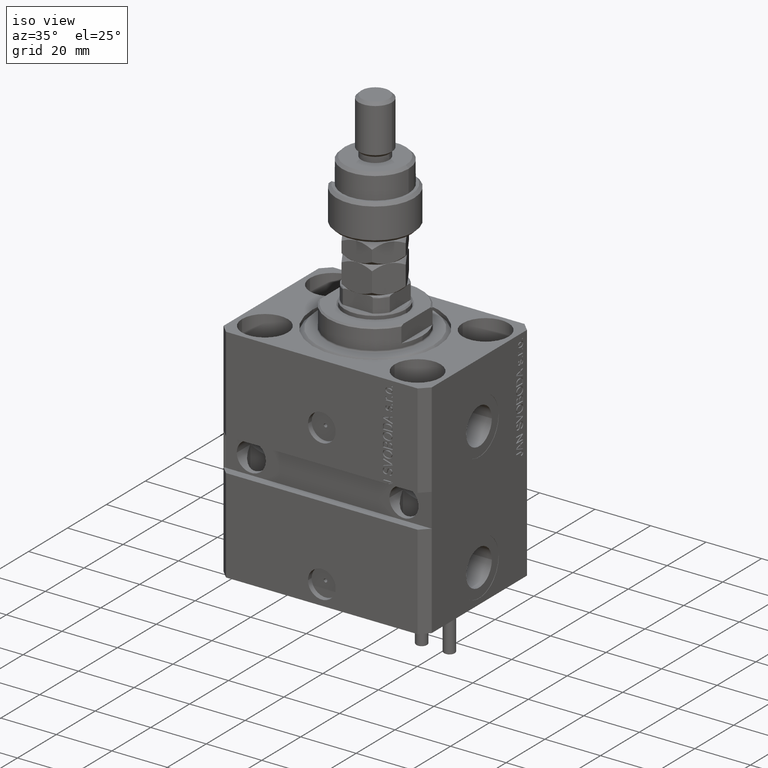
[diagram: clean part render]
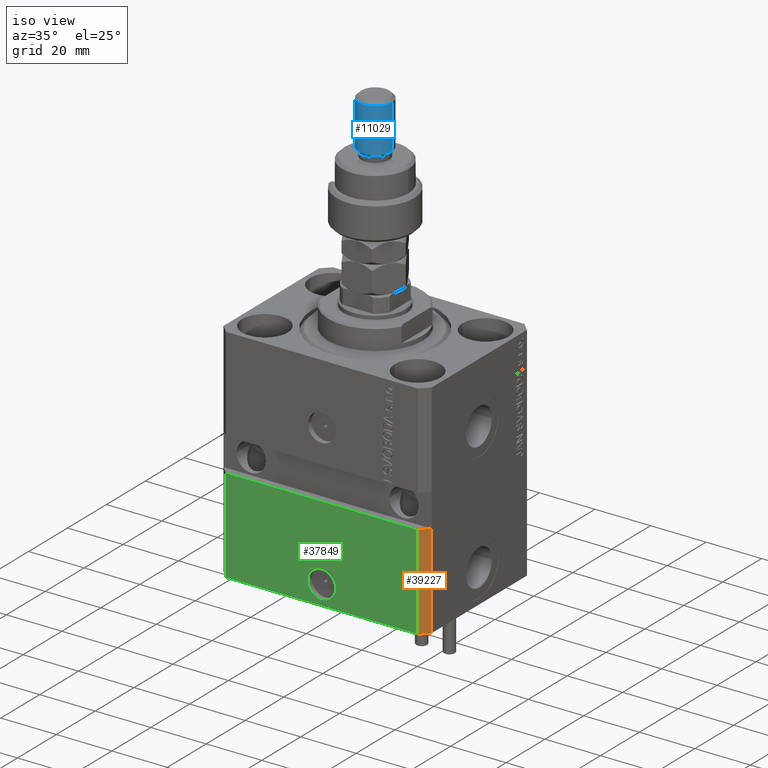
[diagram: same view with three faces highlighted in distinct colors, each labeled with its STEP entity id]
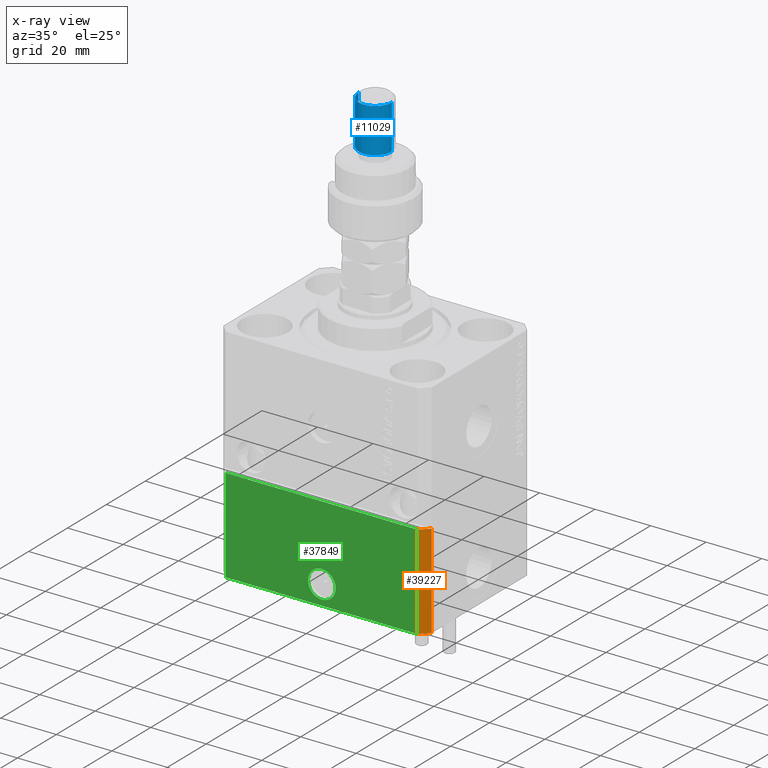
[diagram: x-ray of the same camera — body ghosted, the three highlighted faces saturated]
A machine part, iso view with three faces highlighted in distinct colors.
The next image is the same camera in x-ray (body ghosted, the three faces saturated) — at least one of them is partly hidden behind the body in this view.
Their STEP definitions:

[orange] entity #39227 — the highlighted planar face has unit normal (0.7071, -0.7071, 0).
#1549 = DIRECTION ( 'NONE',  ( 0.7071067811865475727, -0.7071067811865475727, 0.000000000000000000 ) ) ;
#3248 = ORIENTED_EDGE ( 'NONE', *, *, #24216, .F. ) ;
#3342 = VECTOR ( 'NONE', #13754, 1000.000000000000114 ) ;
#8563 = VECTOR ( 'NONE', #41287, 1000.000000000000114 ) ;
#9419 = LINE ( 'NONE', #28589, #3342 ) ;
#9444 = PLANE ( 'NONE',  #37202 ) ;
#10009 = LINE ( 'NONE', #29914, #13994 ) ;
#10636 = VERTEX_POINT ( 'NONE', #32713 ) ;
#11757 = CARTESIAN_POINT ( 'NONE',  ( 37.49999999999999289, -24.50000000000000000, -80.00000000000000000 ) ) ;
#13754 = DIRECTION ( 'NONE',  ( 0.7071067811865474617, 0.7071067811865474617, 0.000000000000000000 ) ) ;
#13994 = VECTOR ( 'NONE', #45218, 1000.000000000000000 ) ;
#14245 = LINE ( 'NONE', #32879, #8563 ) ;
#15959 = VECTOR ( 'NONE', #50403, 1000.000000000000000 ) ;
#16556 = VERTEX_POINT ( 'NONE', #28125 ) ;
#17622 = CARTESIAN_POINT ( 'NONE',  ( 34.49999999999999289, -27.49999999999999645, -80.00000000000000000 ) ) ;
#18250 = LINE ( 'NONE', #42474, #15959 ) ;
#19302 = EDGE_LOOP ( 'NONE', ( #3248, #32471, #42093, #45661 ) ) ;
#20714 = DIRECTION ( 'NONE',  ( 0.7071067811865474617, 0.7071067811865474617, 0.000000000000000000 ) ) ;
#24216 = EDGE_CURVE ( 'NONE', #16556, #34382, #9419, .T. ) ;
#25870 = EDGE_CURVE ( 'NONE', #10636, #16556, #10009, .T. ) ;
#28125 = CARTESIAN_POINT ( 'NONE',  ( 34.49999999999999289, -27.49999999999999289, -46.00000000000000000 ) ) ;
#28589 = CARTESIAN_POINT ( 'NONE',  ( 34.49999999999999289, -27.49999999999999645, -46.00000000000000000 ) ) ;
#29914 = CARTESIAN_POINT ( 'NONE',  ( 34.49999999999999289, -27.49999999999999645, -80.00000000000000000 ) ) ;
#32471 = ORIENTED_EDGE ( 'NONE', *, *, #25870, .F. ) ;
#32713 = CARTESIAN_POINT ( 'NONE',  ( 34.49999999999999289, -27.49999999999999645, -80.00000000000000000 ) ) ;
#32879 = CARTESIAN_POINT ( 'NONE',  ( 34.49999999999999289, -27.49999999999999645, -80.00000000000000000 ) ) ;
#34382 = VERTEX_POINT ( 'NONE', #38668 ) ;
#35678 = EDGE_CURVE ( 'NONE', #10636, #46305, #14245, .T. ) ;
#37202 = AXIS2_PLACEMENT_3D ( 'NONE', #17622, #1549, #20714 ) ;
#38668 = CARTESIAN_POINT ( 'NONE',  ( 37.49999999999999289, -24.49999999999999289, -46.00000000000000000 ) ) ;
#38750 = EDGE_CURVE ( 'NONE', #46305, #34382, #18250, .T. ) ;
#39227 = ADVANCED_FACE ( 'NONE', ( #48757 ), #9444, .T. ) ;
#41287 = DIRECTION ( 'NONE',  ( 0.7071067811865474617, 0.7071067811865474617, 0.000000000000000000 ) ) ;
#42093 = ORIENTED_EDGE ( 'NONE', *, *, #35678, .T. ) ;
#42474 = CARTESIAN_POINT ( 'NONE',  ( 37.49999999999999289, -24.50000000000000000, -80.00000000000000000 ) ) ;
#45218 = DIRECTION ( 'NONE',  ( 0.000000000000000000, 0.000000000000000000, 1.000000000000000000 ) ) ;
#45661 = ORIENTED_EDGE ( 'NONE', *, *, #38750, .T. ) ;
#46305 = VERTEX_POINT ( 'NONE', #11757 ) ;
#48757 = FACE_OUTER_BOUND ( 'NONE', #19302, .T. ) ;
#50403 = DIRECTION ( 'NONE',  ( 0.000000000000000000, 0.000000000000000000, 1.000000000000000000 ) ) ;

[blue] entity #11029 — the highlighted cylindrical surface (edge-blend (fillet) strip) has radius 6 mm, axis along (-0, -0, -1).
#1583 = DIRECTION ( 'NONE',  ( 1.000000000000000000, 0.000000000000000000, 0.000000000000000000 ) ) ;
#2209 = AXIS2_PLACEMENT_3D ( 'NONE', #28287, #12459, #43847 ) ;
#3359 = CARTESIAN_POINT ( 'NONE',  ( -6.000000000000000888, 0.000000000000000000, 41.99999999999999289 ) ) ;
#3656 = CARTESIAN_POINT ( 'NONE',  ( 6.000000000000000888, 7.347880794884120722E-16, 24.99999999999999645 ) ) ;
#3853 = ORIENTED_EDGE ( 'NONE', *, *, #41329, .T. ) ;
#4438 = CARTESIAN_POINT ( 'NONE',  ( -6.000000000000000888, 0.000000000000000000, 24.99999999999999645 ) ) ;
#4881 = VERTEX_POINT ( 'NONE', #3656 ) ;
#10895 = ORIENTED_EDGE ( 'NONE', *, *, #12697, .T. ) ;
#11029 = ADVANCED_FACE ( 'NONE', ( #43269 ), #16731, .T. ) ;
#12330 = DIRECTION ( 'NONE',  ( -0.000000000000000000, -0.000000000000000000, -1.000000000000000000 ) ) ;
#12459 = DIRECTION ( 'NONE',  ( -0.000000000000000000, -0.000000000000000000, 1.000000000000000000 ) ) ;
#12628 = DIRECTION ( 'NONE',  ( -0.000000000000000000, -0.000000000000000000, -1.000000000000000000 ) ) ;
#12697 = EDGE_CURVE ( 'NONE', #25750, #4881, #18501, .T. ) ;
#16731 = CYLINDRICAL_SURFACE ( 'NONE', #17322, 6.000000000000000888 ) ;
#17097 = ORIENTED_EDGE ( 'NONE', *, *, #25778, .F. ) ;
#17322 = AXIS2_PLACEMENT_3D ( 'NONE', #35601, #12628, #20806 ) ;
#18501 = CIRCLE ( 'NONE', #2209, 6.000000000000000888 ) ;
#18677 = DIRECTION ( 'NONE',  ( -0.000000000000000000, -0.000000000000000000, -1.000000000000000000 ) ) ;
#20806 = DIRECTION ( 'NONE',  ( -1.000000000000000000, 0.000000000000000000, 0.000000000000000000 ) ) ;
#22606 = CIRCLE ( 'NONE', #42941, 6.000000000000000888 ) ;
#23817 = VERTEX_POINT ( 'NONE', #45235 ) ;
#24320 = DIRECTION ( 'NONE',  ( 0.000000000000000000, 0.000000000000000000, -1.000000000000000000 ) ) ;
#24842 = LINE ( 'NONE', #47818, #35208 ) ;
#25750 = VERTEX_POINT ( 'NONE', #4438 ) ;
#25778 = EDGE_CURVE ( 'NONE', #23817, #4881, #24842, .T. ) ;
#26542 = VECTOR ( 'NONE', #18677, 1000.000000000000000 ) ;
#28287 = CARTESIAN_POINT ( 'NONE',  ( 0.000000000000000000, 0.000000000000000000, 24.99999999999999645 ) ) ;
#34224 = VERTEX_POINT ( 'NONE', #38728 ) ;
#35208 = VECTOR ( 'NONE', #12330, 1000.000000000000000 ) ;
#35601 = CARTESIAN_POINT ( 'NONE',  ( 0.000000000000000000, 0.000000000000000000, 41.99999999999999289 ) ) ;
#37505 = EDGE_CURVE ( 'NONE', #34224, #25750, #41632, .T. ) ;
#37870 = ORIENTED_EDGE ( 'NONE', *, *, #37505, .T. ) ;
#38600 = EDGE_LOOP ( 'NONE', ( #17097, #3853, #37870, #10895 ) ) ;
#38728 = CARTESIAN_POINT ( 'NONE',  ( -6.000000000000000888, 0.000000000000000000, 40.99999999999997868 ) ) ;
#41329 = EDGE_CURVE ( 'NONE', #23817, #34224, #22606, .T. ) ;
#41632 = LINE ( 'NONE', #3359, #26542 ) ;
#42941 = AXIS2_PLACEMENT_3D ( 'NONE', #43694, #24320, #1583 ) ;
#43269 = FACE_OUTER_BOUND ( 'NONE', #38600, .T. ) ;
#43694 = CARTESIAN_POINT ( 'NONE',  ( 0.000000000000000000, 0.000000000000000000, 40.99999999999997868 ) ) ;
#43847 = DIRECTION ( 'NONE',  ( 1.000000000000000000, 0.000000000000000000, 0.000000000000000000 ) ) ;
#45235 = CARTESIAN_POINT ( 'NONE',  ( 6.000000000000000888, 7.347880794884120722E-16, 40.99999999999997868 ) ) ;
#47818 = CARTESIAN_POINT ( 'NONE',  ( 6.000000000000000888, 7.347880794884120722E-16, 41.99999999999999289 ) ) ;

[green] entity #37849 — the highlighted planar face has unit normal (0, -1, 0).
#985 = DIRECTION ( 'NONE',  ( 1.000000000000000000, 0.000000000000000000, 0.000000000000000000 ) ) ;
#4543 = ORIENTED_EDGE ( 'NONE', *, *, #26613, .F. ) ;
#7761 = DIRECTION ( 'NONE',  ( 0.000000000000000000, 0.000000000000000000, 1.000000000000000000 ) ) ;
#8225 = CARTESIAN_POINT ( 'NONE',  ( -34.49999999999998579, -27.49999999999999645, -80.00000000000000000 ) ) ;
#8590 = CARTESIAN_POINT ( 'NONE',  ( 5.000000000000006217, -27.49999999999999645, -73.00000000000000000 ) ) ;
#9954 = AXIS2_PLACEMENT_3D ( 'NONE', #40274, #35956, #985 ) ;
#10009 = LINE ( 'NONE', #29914, #13994 ) ;
#10636 = VERTEX_POINT ( 'NONE', #32713 ) ;
#11127 = CARTESIAN_POINT ( 'NONE',  ( -34.49999999999998579, -27.49999999999999645, -80.00000000000000000 ) ) ;
#12599 = VECTOR ( 'NONE', #31714, 1000.000000000000000 ) ;
#12917 = EDGE_CURVE ( 'NONE', #41878, #16556, #43781, .T. ) ;
#13827 = ORIENTED_EDGE ( 'NONE', *, *, #12917, .F. ) ;
#13938 = EDGE_LOOP ( 'NONE', ( #4543, #37481 ) ) ;
#13994 = VECTOR ( 'NONE', #45218, 1000.000000000000000 ) ;
#14451 = FACE_BOUND ( 'NONE', #13938, .T. ) ;
#14980 = DIRECTION ( 'NONE',  ( 0.000000000000000000, -1.000000000000000000, 0.000000000000000000 ) ) ;
#15224 = PLANE ( 'NONE',  #49336 ) ;
#15967 = VERTEX_POINT ( 'NONE', #8590 ) ;
#16401 = LINE ( 'NONE', #8225, #12599 ) ;
#16556 = VERTEX_POINT ( 'NONE', #28125 ) ;
#19505 = CIRCLE ( 'NONE', #49671, 5.000000000000006217 ) ;
#20307 = CARTESIAN_POINT ( 'NONE',  ( -34.49999999999998579, -27.50000000000000000, -46.00000000000000000 ) ) ;
#22449 = ORIENTED_EDGE ( 'NONE', *, *, #25870, .T. ) ;
#24652 = CIRCLE ( 'NONE', #9954, 5.000000000000006217 ) ;
#25870 = EDGE_CURVE ( 'NONE', #10636, #16556, #10009, .T. ) ;
#26613 = EDGE_CURVE ( 'NONE', #15967, #36294, #24652, .T. ) ;
#28125 = CARTESIAN_POINT ( 'NONE',  ( 34.49999999999999289, -27.49999999999999289, -46.00000000000000000 ) ) ;
#29914 = CARTESIAN_POINT ( 'NONE',  ( 34.49999999999999289, -27.49999999999999645, -80.00000000000000000 ) ) ;
#30034 = FACE_OUTER_BOUND ( 'NONE', #42062, .T. ) ;
#30263 = CARTESIAN_POINT ( 'NONE',  ( 0.000000000000000000, -27.49999999999999645, -73.00000000000000000 ) ) ;
#30440 = ORIENTED_EDGE ( 'NONE', *, *, #38070, .F. ) ;
#31489 = CARTESIAN_POINT ( 'NONE',  ( -34.49999999999998579, -27.49999999999999645, -80.00000000000000000 ) ) ;
#31714 = DIRECTION ( 'NONE',  ( 1.000000000000000000, 0.000000000000000000, 0.000000000000000000 ) ) ;
#32306 = CARTESIAN_POINT ( 'NONE',  ( -37.50000000000000000, -27.50000000000000000, -46.00000000000000000 ) ) ;
#32350 = ORIENTED_EDGE ( 'NONE', *, *, #35379, .T. ) ;
#32713 = CARTESIAN_POINT ( 'NONE',  ( 34.49999999999999289, -27.49999999999999645, -80.00000000000000000 ) ) ;
#33558 = DIRECTION ( 'NONE',  ( 1.000000000000000000, 0.000000000000000000, 0.000000000000000000 ) ) ;
#34802 = LINE ( 'NONE', #31489, #37134 ) ;
#35379 = EDGE_CURVE ( 'NONE', #37437, #10636, #16401, .T. ) ;
#35956 = DIRECTION ( 'NONE',  ( 1.176083712526788232E-16, -1.000000000000000000, 0.000000000000000000 ) ) ;
#36294 = VERTEX_POINT ( 'NONE', #49038 ) ;
#37134 = VECTOR ( 'NONE', #7761, 1000.000000000000000 ) ;
#37394 = DIRECTION ( 'NONE',  ( 1.176083712526788232E-16, -1.000000000000000000, 0.000000000000000000 ) ) ;
#37437 = VERTEX_POINT ( 'NONE', #46790 ) ;
#37481 = ORIENTED_EDGE ( 'NONE', *, *, #49398, .F. ) ;
#37849 = ADVANCED_FACE ( 'NONE', ( #14451, #30034 ), #15224, .T. ) ;
#38070 = EDGE_CURVE ( 'NONE', #37437, #41878, #34802, .T. ) ;
#40274 = CARTESIAN_POINT ( 'NONE',  ( 0.000000000000000000, -27.49999999999999645, -73.00000000000000000 ) ) ;
#41878 = VERTEX_POINT ( 'NONE', #20307 ) ;
#42062 = EDGE_LOOP ( 'NONE', ( #13827, #30440, #32350, #22449 ) ) ;
#43781 = LINE ( 'NONE', #32306, #47899 ) ;
#45218 = DIRECTION ( 'NONE',  ( 0.000000000000000000, 0.000000000000000000, 1.000000000000000000 ) ) ;
#46108 = DIRECTION ( 'NONE',  ( 0.000000000000000000, -0.000000000000000000, -1.000000000000000000 ) ) ;
#46790 = CARTESIAN_POINT ( 'NONE',  ( -34.49999999999998579, -27.49999999999999645, -80.00000000000000000 ) ) ;
#47879 = DIRECTION ( 'NONE',  ( 1.000000000000000000, 9.251858538542972814E-17, 0.000000000000000000 ) ) ;
#47899 = VECTOR ( 'NONE', #47879, 1000.000000000000000 ) ;
#49038 = CARTESIAN_POINT ( 'NONE',  ( -5.000000000000006217, -27.49999999999999645, -73.00000000000000000 ) ) ;
#49336 = AXIS2_PLACEMENT_3D ( 'NONE', #11127, #14980, #46108 ) ;
#49398 = EDGE_CURVE ( 'NONE', #36294, #15967, #19505, .T. ) ;
#49671 = AXIS2_PLACEMENT_3D ( 'NONE', #30263, #37394, #33558 ) ;